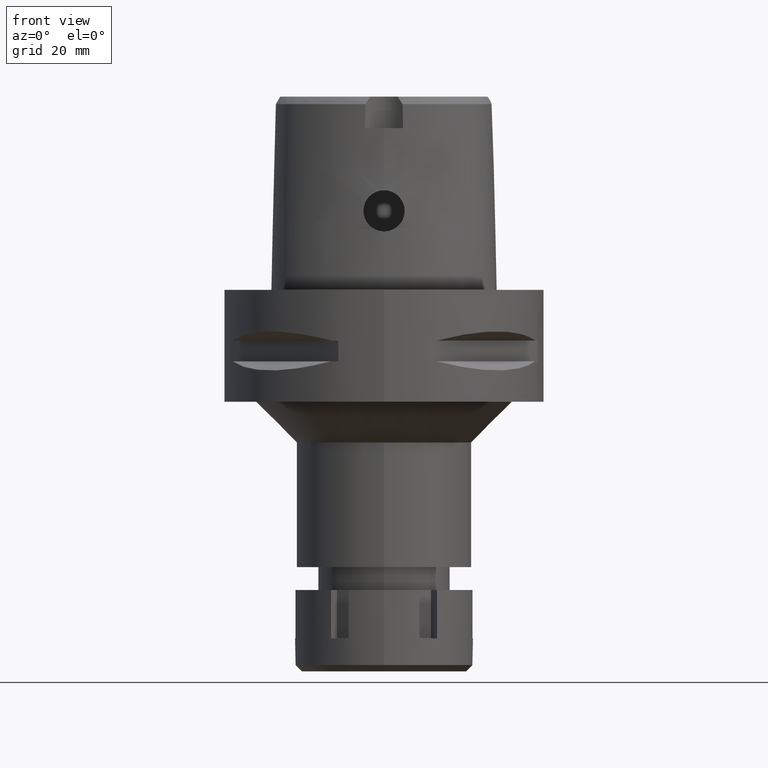
[diagram: clean part render]
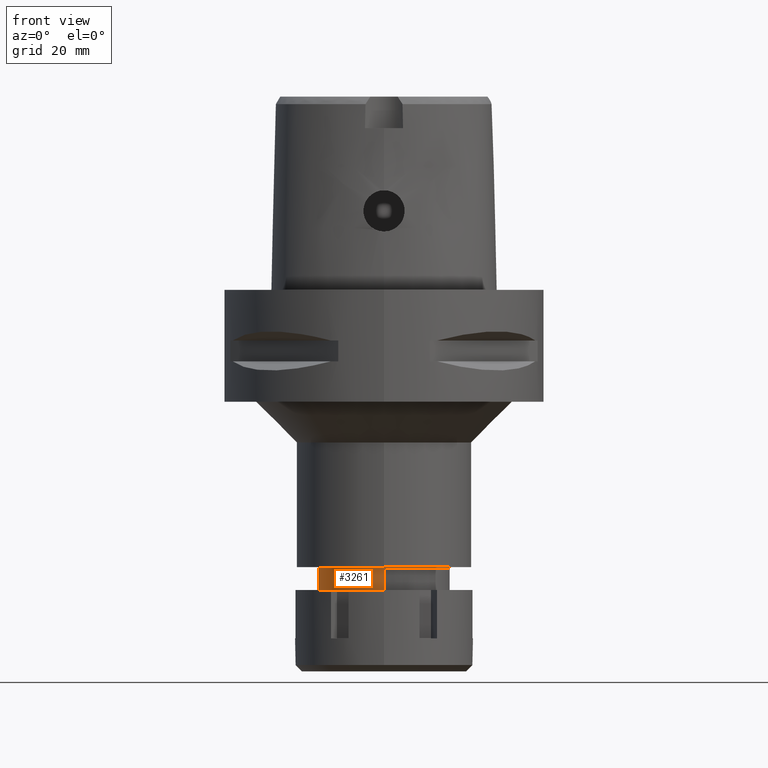
[diagram: same view with one face highlighted and labeled with its STEP entity id]
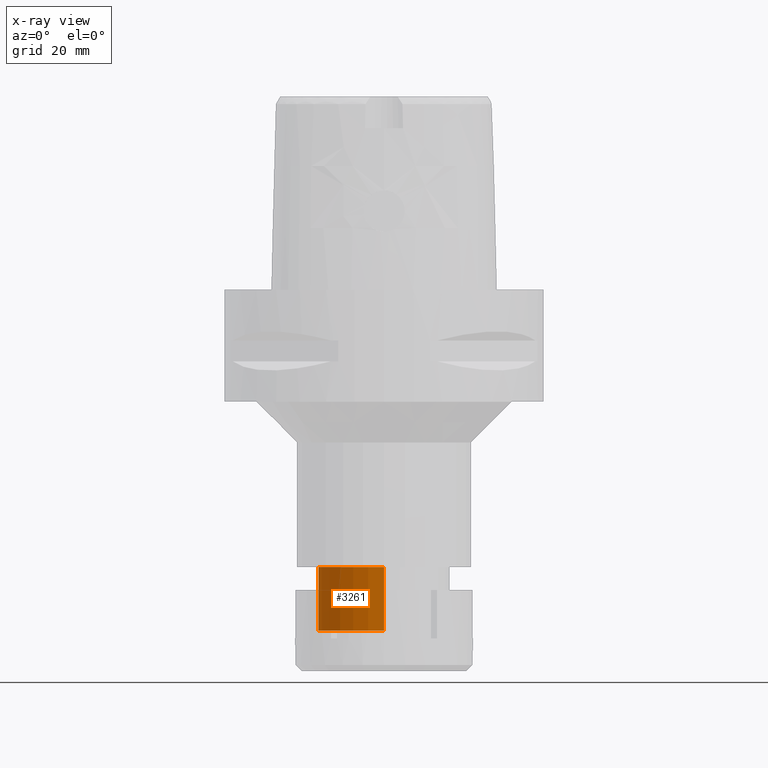
[diagram: x-ray of the same camera — body ghosted, the highlighted face saturated]
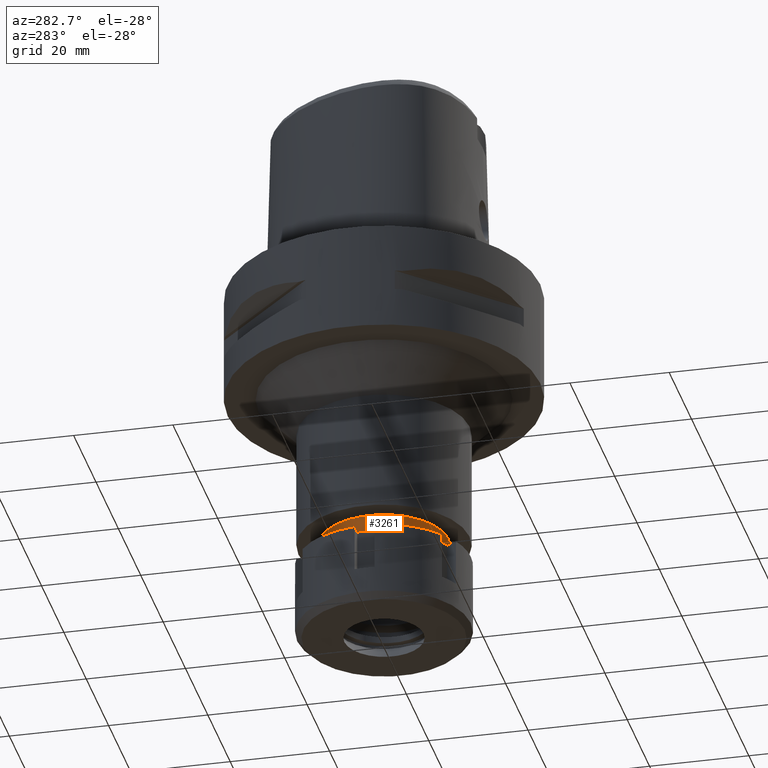
[diagram: same view with one face highlighted and labeled with its STEP entity id]
A machine part, front view. The second image highlights one B-rep face of the part: STEP entity #3261.
The next image is the same camera in x-ray: the body ghosted, the highlighted face saturated — about 0% of this face is hidden behind the body in this view.
A second angle (auxiliary view) of the same face is appended — the face is thin or edge-on in the first view.
In plain terms, the highlighted cylindrical surface (partial cylindrical patch) has radius 13 mm, axis along (0, 0, -1).
Its self-contained STEP definition (entity closure, byte-faithful):
#45 = EDGE_CURVE ( 'NONE', #1169, #655, #1931, .T. ) ;
#257 = CARTESIAN_POINT ( 'NONE',  ( 0.0000000000000000000, 1.265672466918999865E-14, -54.50000000000000000 ) ) ;
#572 = FACE_OUTER_BOUND ( 'NONE', #3736, .T. ) ;
#655 = VERTEX_POINT ( 'NONE', #4606 ) ;
#732 = CARTESIAN_POINT ( 'NONE',  ( 0.0000000000000000000, 1.265672466918999865E-14, -67.00000000000000000 ) ) ;
#784 = CARTESIAN_POINT ( 'NONE',  ( 0.0000000000000000000, 13.00000000000000000, -54.50000000000000000 ) ) ;
#795 = CARTESIAN_POINT ( 'NONE',  ( 0.0000000000000000000, -13.00000000000000000, -54.50000000000000000 ) ) ;
#856 = AXIS2_PLACEMENT_3D ( 'NONE', #732, #2405, #2799 ) ;
#1051 = EDGE_CURVE ( 'NONE', #3785, #2023, #1902, .T. ) ;
#1169 = VERTEX_POINT ( 'NONE', #795 ) ;
#1376 = VECTOR ( 'NONE', #4775, 1000.000000000000000 ) ;
#1454 = CYLINDRICAL_SURFACE ( 'NONE', #1565, 13.00000000000000000 ) ;
#1523 = DIRECTION ( 'NONE',  ( 0.0000000000000000000, 0.0000000000000000000, -1.000000000000000000 ) ) ;
#1565 = AXIS2_PLACEMENT_3D ( 'NONE', #3163, #1863, #4401 ) ;
#1585 = DIRECTION ( 'NONE',  ( 0.0000000000000000000, -1.000000000000000000, 0.0000000000000000000 ) ) ;
#1863 = DIRECTION ( 'NONE',  ( 0.0000000000000000000, 0.0000000000000000000, -1.000000000000000000 ) ) ;
#1902 = LINE ( 'NONE', #3638, #2233 ) ;
#1931 = LINE ( 'NONE', #3200, #1376 ) ;
#2023 = VERTEX_POINT ( 'NONE', #3636 ) ;
#2233 = VECTOR ( 'NONE', #1523, 1000.000000000000000 ) ;
#2405 = DIRECTION ( 'NONE',  ( 0.0000000000000000000, 0.0000000000000000000, 1.000000000000000000 ) ) ;
#2570 = ORIENTED_EDGE ( 'NONE', *, *, #45, .F. ) ;
#2799 = DIRECTION ( 'NONE',  ( 0.0000000000000000000, 1.000000000000000000, 0.0000000000000000000 ) ) ;
#3163 = CARTESIAN_POINT ( 'NONE',  ( 0.0000000000000000000, 1.265672466918999865E-14, 3.350000000000000089 ) ) ;
#3200 = CARTESIAN_POINT ( 'NONE',  ( 0.0000000000000000000, -13.00000000000000000, -54.50000000000000000 ) ) ;
#3234 = CIRCLE ( 'NONE', #856, 13.00000000000000000 ) ;
#3261 = ADVANCED_FACE ( 'NONE', ( #572 ), #1454, .T. ) ;
#3338 = EDGE_CURVE ( 'NONE', #1169, #3785, #3504, .T. ) ;
#3504 = CIRCLE ( 'NONE', #4104, 13.00000000000000000 ) ;
#3636 = CARTESIAN_POINT ( 'NONE',  ( 0.0000000000000000000, 13.00000000000000000, -67.00000000000000000 ) ) ;
#3638 = CARTESIAN_POINT ( 'NONE',  ( 0.0000000000000000000, 13.00000000000000000, -54.50000000000000000 ) ) ;
#3736 = EDGE_LOOP ( 'NONE', ( #5254, #2570, #3928, #5038 ) ) ;
#3740 = EDGE_CURVE ( 'NONE', #2023, #655, #3234, .T. ) ;
#3785 = VERTEX_POINT ( 'NONE', #784 ) ;
#3928 = ORIENTED_EDGE ( 'NONE', *, *, #3338, .T. ) ;
#4060 = DIRECTION ( 'NONE',  ( 0.0000000000000000000, 0.0000000000000000000, -1.000000000000000000 ) ) ;
#4104 = AXIS2_PLACEMENT_3D ( 'NONE', #257, #4060, #1585 ) ;
#4401 = DIRECTION ( 'NONE',  ( 0.0000000000000000000, -1.000000000000000000, 0.0000000000000000000 ) ) ;
#4606 = CARTESIAN_POINT ( 'NONE',  ( 0.0000000000000000000, -13.00000000000000000, -67.00000000000000000 ) ) ;
#4775 = DIRECTION ( 'NONE',  ( 0.0000000000000000000, 0.0000000000000000000, -1.000000000000000000 ) ) ;
#5038 = ORIENTED_EDGE ( 'NONE', *, *, #1051, .T. ) ;
#5254 = ORIENTED_EDGE ( 'NONE', *, *, #3740, .T. ) ;